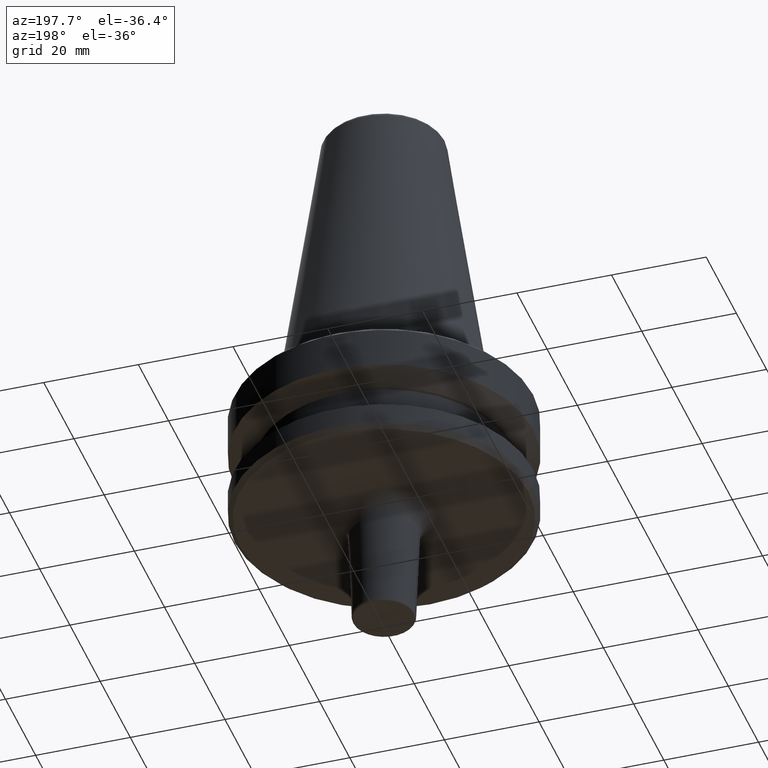
[diagram: clean part render]
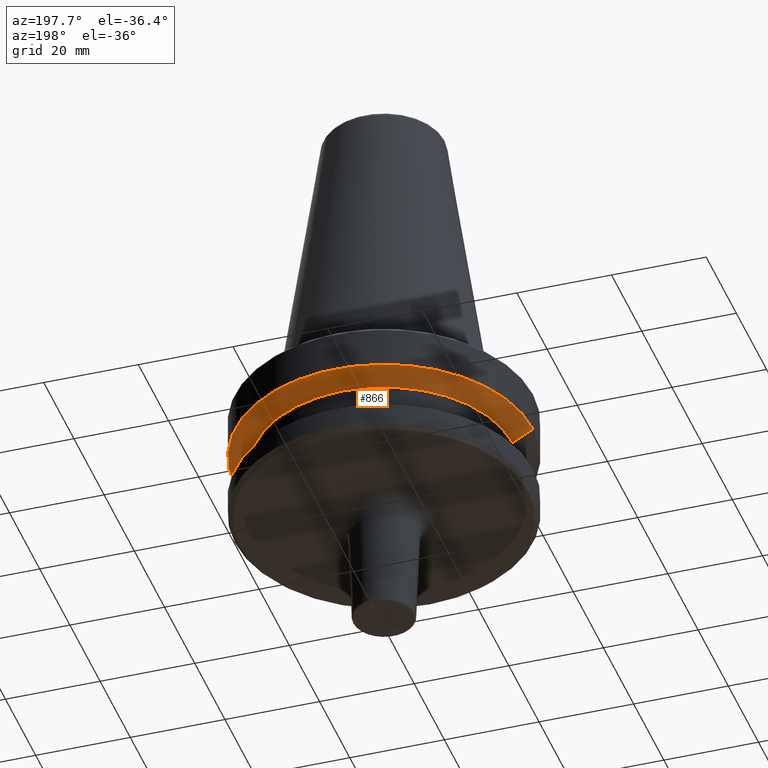
[diagram: same view with one face highlighted and labeled with its STEP entity id]
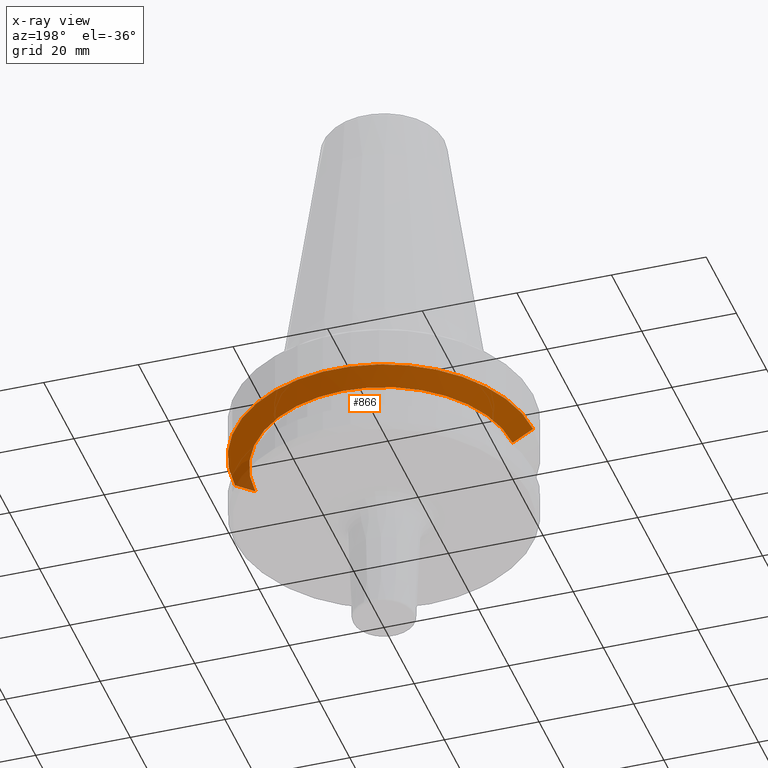
[diagram: x-ray of the same camera — body ghosted, the highlighted face saturated]
A machine part, auxiliary view. The second image highlights one B-rep face of the part: STEP entity #866.
The next image is the same camera in x-ray: the body ghosted, the highlighted face saturated — about 5% of this face is hidden behind the body in this view.
In plain terms, the highlighted conical surface has half-angle 60 deg.
Its self-contained STEP definition (entity closure, byte-faithful):
#64 = AXIS2_PLACEMENT_3D ( 'NONE', #202, #746, #283 ) ;
#109 = CARTESIAN_POINT ( 'NONE',  ( -31.50000000000008500, 3.857637417314172900E-015, -76.99985799368391800 ) ) ;
#157 = CARTESIAN_POINT ( 'NONE',  ( 31.50000000000008500, 0.0000000000000000000, -76.99985799368391800 ) ) ;
#190 = DIRECTION ( 'NONE',  ( 0.8660254037844383700, 0.0000000000000000000, 0.5000000000000003300 ) ) ;
#202 = CARTESIAN_POINT ( 'NONE',  ( 0.0000000000000000000, 0.0000000000000000000, -76.99985799368391800 ) ) ;
#206 = LINE ( 'NONE', #109, #386 ) ;
#263 = DIRECTION ( 'NONE',  ( -0.0000000000000000000, -0.0000000000000000000, 1.000000000000000000 ) ) ;
#273 = CARTESIAN_POINT ( 'NONE',  ( -27.16962701892322600, 3.592478546794674900E-015, -79.50000000000012800 ) ) ;
#283 = DIRECTION ( 'NONE',  ( 1.000000000000000000, 0.0000000000000000000, 0.0000000000000000000 ) ) ;
#295 = CARTESIAN_POINT ( 'NONE',  ( 27.16962701892322600, 0.0000000000000000000, -79.50000000000012800 ) ) ;
#309 = LINE ( 'NONE', #993, #614 ) ;
#354 = VERTEX_POINT ( 'NONE', #295 ) ;
#386 = VECTOR ( 'NONE', #422, 1000.000000000000100 ) ;
#395 = DIRECTION ( 'NONE',  ( -0.0000000000000000000, -0.0000000000000000000, 1.000000000000000000 ) ) ;
#422 = DIRECTION ( 'NONE',  ( -0.8660254037844383700, 1.060575238724906500E-016, 0.5000000000000003300 ) ) ;
#435 = ORIENTED_EDGE ( 'NONE', *, *, #1005, .T. ) ;
#449 = ORIENTED_EDGE ( 'NONE', *, *, #798, .T. ) ;
#549 = CARTESIAN_POINT ( 'NONE',  ( 0.0000000000000000000, 0.0000000000000000000, -76.99985799368391800 ) ) ;
#575 = CARTESIAN_POINT ( 'NONE',  ( -31.50000000000008500, 3.857637417314172900E-015, -76.99985799368391800 ) ) ;
#605 = EDGE_CURVE ( 'NONE', #925, #765, #672, .T. ) ;
#614 = VECTOR ( 'NONE', #190, 1000.000000000000100 ) ;
#627 = VERTEX_POINT ( 'NONE', #273 ) ;
#672 = CIRCLE ( 'NONE', #64, 31.50000000000008500 ) ;
#698 = DIRECTION ( 'NONE',  ( 1.000000000000000000, 0.0000000000000000000, 0.0000000000000000000 ) ) ;
#715 = AXIS2_PLACEMENT_3D ( 'NONE', #549, #395, #698 ) ;
#721 = FACE_OUTER_BOUND ( 'NONE', #779, .T. ) ;
#726 = CARTESIAN_POINT ( 'NONE',  ( 0.0000000000000000000, 0.0000000000000000000, -79.50000000000012800 ) ) ;
#746 = DIRECTION ( 'NONE',  ( -0.0000000000000000000, -0.0000000000000000000, 1.000000000000000000 ) ) ;
#765 = VERTEX_POINT ( 'NONE', #575 ) ;
#779 = EDGE_LOOP ( 'NONE', ( #435, #449, #872, #1024 ) ) ;
#784 = EDGE_CURVE ( 'NONE', #354, #925, #309, .T. ) ;
#798 = EDGE_CURVE ( 'NONE', #627, #765, #206, .T. ) ;
#808 = DIRECTION ( 'NONE',  ( 1.000000000000000000, 0.0000000000000000000, 0.0000000000000000000 ) ) ;
#851 = CIRCLE ( 'NONE', #1038, 27.16962701892322600 ) ;
#866 = ADVANCED_FACE ( 'NONE', ( #721 ), #924, .T. ) ;
#872 = ORIENTED_EDGE ( 'NONE', *, *, #605, .F. ) ;
#924 = CONICAL_SURFACE ( 'NONE', #715, 31.50000000000008500, 1.047197551196597400 ) ;
#925 = VERTEX_POINT ( 'NONE', #157 ) ;
#993 = CARTESIAN_POINT ( 'NONE',  ( 31.50000000000008500, 0.0000000000000000000, -76.99985799368391800 ) ) ;
#1005 = EDGE_CURVE ( 'NONE', #354, #627, #851, .T. ) ;
#1024 = ORIENTED_EDGE ( 'NONE', *, *, #784, .F. ) ;
#1038 = AXIS2_PLACEMENT_3D ( 'NONE', #726, #263, #808 ) ;